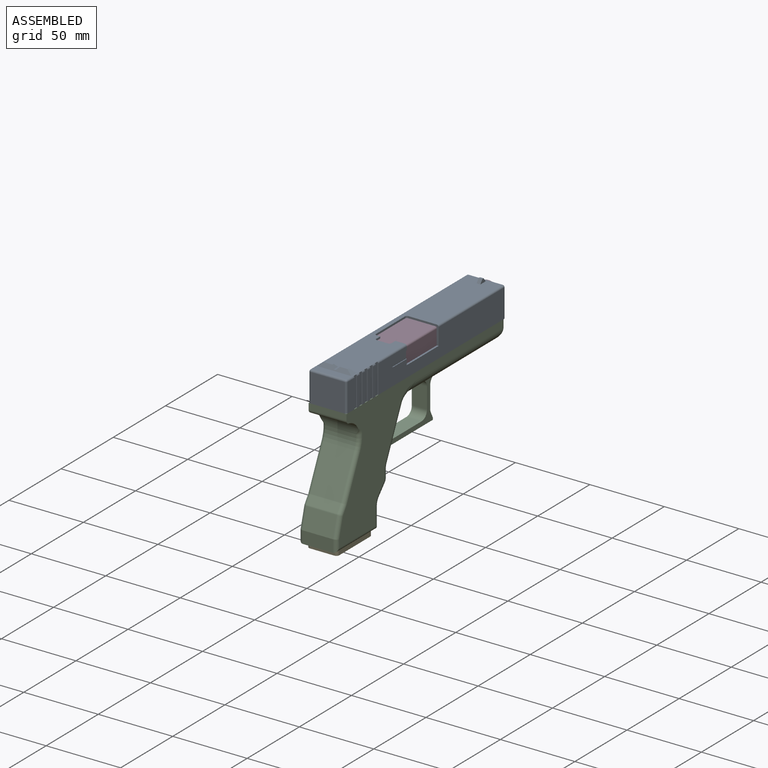
[diagram: assembled view]
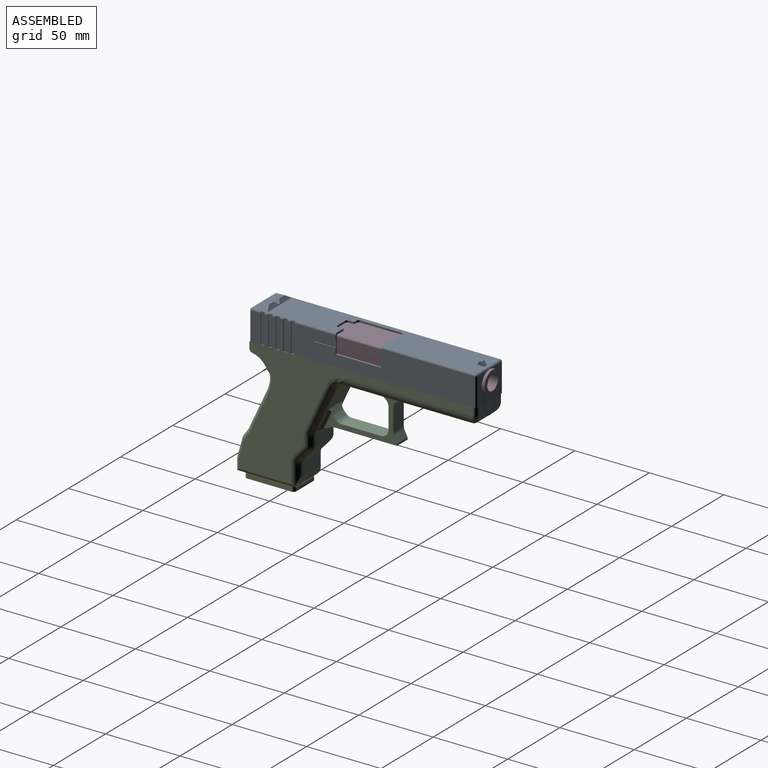
[diagram: assembled view, second angle]
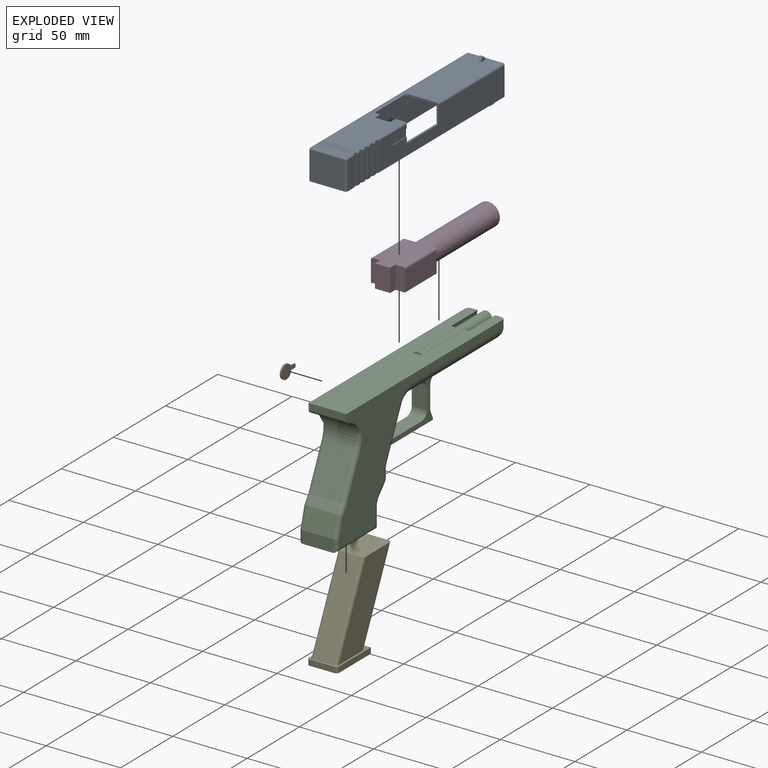
[diagram: exploded view]
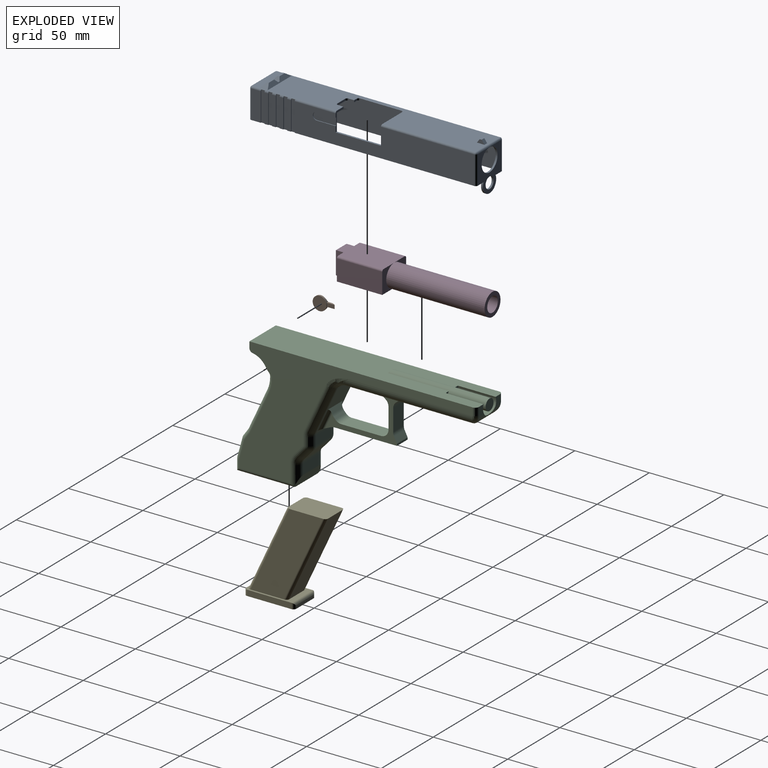
[diagram: exploded view, second angle]
ASSEMBLY  parts=5 mates=5
PART A: 102 faces, bbox 25.4x152.4x31.8 mm
  f0: plane 5.08x1.27mm, normal (0,0,1), area 6.5mm2, adj f2,f3,f95,f96
  f1: plane 5.08x1.27mm, normal (0,0,1), area 6.5mm2, adj f2,f3,f93,f97
  f2: plane 22.86x2.54mm, normal (0,0.8,0.6), area 52.9mm2, adj f0,f1,f4,f93,f94,f95,f96,f97
  f3: plane 22.86x2.54mm, normal (0,-0.8,0.6), area 52.9mm2, adj f0,f1,f25,f93,f94,f95,f96,f97
  f4: plane 139.7x22.86mm, normal (0,0,1), area 2511.1mm2, adj f2,f6,f7,f21,f34,f35,f36,f37
  f5: plane 2.54x1.27mm, normal (0,0,1), area 3.2mm2, adj f6,f7,f91,f92
  f6: plane 2.54x2.54mm, normal (0,0.8,0.6), area 8.1mm2, adj f4,f5,f91,f92
  f7: plane 2.54x2.54mm, normal (0,-0.8,0.6), area 8.1mm2, adj f4,f5,f91,f92
  f8: plane 152.4x25.4mm, normal (0,0,-1), area 417.4mm2, adj f9,f11,f12,f13,f14,f15,f16,f17
  f9: plane 3.22x2.54mm, normal (-1,0,0), area 7mm2, adj f8,f59,f60,f61
  f10: plane 7.03x2.54mm, normal (-1,0,0), area 16.7mm2, adj f63,f64,f65,f85
  f11: plane 19.05x7.62mm, normal (-1,0,0), area 128mm2, adj f8,f66,f67,f68,f71,f76,f85
  f12: plane 120.65x19.05mm, normal (-1,0,0), area 2298.4mm2, adj f8,f73,f82,f85
  f13: plane 19.05x2.54mm, normal (-1,0,0), area 48.4mm2, adj f8,f70,f74,f85
  f14: plane 19.05x6.35mm, normal (-1,0,0), area 121mm2, adj f8,f62,f85,f89
  f15: plane 19.05x2.54mm, normal (1,0,0), area 48.4mm2, adj f8,f54,f56,f78
  f16: plane 19.05x2.54mm, normal (1,0,0), area 48.4mm2, adj f8,f51,f53,f78
  f17: plane 19.05x2.54mm, normal (1,0,0), area 48.4mm2, adj f8,f48,f50,f78
  f18: plane 19.05x2.54mm, normal (1,0,0), area 48.4mm2, adj f8,f45,f47,f78
  f19: plane 120.65x19.05mm, normal (1,0,0), area 1875.3mm2, adj f8,f21,f33,f34,f40,f41,f42,f44
  f20: plane 19.05x6.35mm, normal (1,0,0), area 121mm2, adj f8,f57,f78,f86
  f21: plane 12.7x7.62mm, normal (0,1,0), area 21.3mm2, adj f4,f19,f22,f23,f33,f39,f40,f41
  f22: plane 149.86x22.86mm, normal (0,0,-1), area 2756.2mm2, adj f21,f23,f27,f28,f29,f34,f35,f36
  f23: plane 149.86x19.05mm, normal (-1,0,0), area 2506.4mm2, adj f8,f21,f22,f27,f28,f33,f34
  f24: plane 27.94x22.86mm, normal (0,1,0), area 302.2mm2, adj f8,f30,f31,f32,f79,f82,f83
  f25: plane 22.86x5.08mm, normal (0,0,1), area 116.1mm2, adj f3,f78,f85,f88
  f26: plane 22.86x19.05mm, normal (0,-1,0), area 435.5mm2, adj f8,f86,f88,f89
  f27: plane 27.94x22.86mm, normal (0,-1,0), area 302.2mm2, adj f8,f22,f23,f29,f30,f31,f32
  f28: plane 22.86x19.05mm, normal (0,1,0), area 435.5mm2, adj f8,f22,f23,f29
  f29: plane 149.86x19.05mm, normal (1,0,0), area 2854.8mm2, adj f8,f22,f27,f28
  f30: cylinder r=6.35mm len=12.7mm, axis (0,1,0), area 32mm2, adj f8,f24,f27
  f31: cylinder r=3.81mm len=7.62mm, axis (0,1,0), area 30.4mm2, adj f24,f27
  f32: cylinder r=7.62mm len=15.24mm, axis (0,1,0), area 60.8mm2, adj f24,f27
  f33: plane 30.48x1.27mm, normal (0,0,1), area 38.7mm2, adj f19,f21,f23,f34
  f34: plane 20.32x12.7mm, normal (0,-1,0), area 40mm2, adj f4,f19,f22,f23,f33,f80,f98
  f35: plane 27.94x1.27mm, normal (1,0,0), area 35.5mm2, adj f4,f22,f98,f99
  f36: plane 2.54x1.27mm, normal (0,1,0), area 3.2mm2, adj f4,f22,f37,f99
  f37: plane 3.81x1.27mm, normal (1,0,0), area 4.8mm2, adj f4,f22,f36,f100
  f38: plane 7.62x1.27mm, normal (0,1,0), area 9.7mm2, adj f4,f22,f100,f101
  f39: plane 3.81x1.27mm, normal (-1,0,0), area 4.8mm2, adj f4,f21,f22,f101
  f40: plane 12.7x0.51mm, normal (0,0,1), area 6.5mm2, adj f19,f21,f42,f43
  f41: plane 12.7x0.51mm, normal (0,0,-1), area 6.5mm2, adj f19,f21,f42,f43
  f42: cylinder r=2.54mm len=5.08mm, axis (1,0,0), area 4.1mm2, adj f19,f40,f41,f43
  f43: plane 15.24x5.08mm, normal (1,0,0), area 74.7mm2, adj f21,f40,f41,f42
  f44: plane 20.07x0.51mm, normal (0,-1,0), area 10mm2, adj f8,f19,f46,f78
  f45: plane 20.07x0.51mm, normal (0,1,0), area 10mm2, adj f8,f18,f46,f78
  f46: plane 20.07x2.54mm, normal (1,0,0), area 51mm2, adj f8,f44,f45,f78
  f47: plane 20.07x0.51mm, normal (0,-1,0), area 10mm2, adj f8,f18,f49,f78
  f48: plane 20.07x0.51mm, normal (0,1,0), area 10mm2, adj f8,f17,f49,f78
  f49: plane 20.07x2.54mm, normal (1,0,0), area 51mm2, adj f8,f47,f48,f78
  f50: plane 20.07x0.51mm, normal (0,-1,0), area 10mm2, adj f8,f17,f52,f78
  f51: plane 20.07x0.51mm, normal (0,1,0), area 10mm2, adj f8,f16,f52,f78
  f52: plane 20.07x2.54mm, normal (1,0,0), area 51mm2, adj f8,f50,f51,f78
  f53: plane 20.07x0.51mm, normal (0,-1,0), area 10mm2, adj f8,f16,f55,f78
  f54: plane 20.07x0.51mm, normal (0,1,0), area 10mm2, adj f8,f15,f55,f78
  f55: plane 20.07x2.54mm, normal (1,0,0), area 51mm2, adj f8,f53,f54,f78
  f56: plane 20.07x0.51mm, normal (0,-1,0), area 10mm2, adj f8,f15,f58,f78
  f57: plane 20.07x0.51mm, normal (0,1,0), area 10mm2, adj f8,f20,f58,f78
  f58: plane 20.07x2.54mm, normal (1,0,0), area 51mm2, adj f8,f56,f57,f78
  f59: plane 2.54x0.51mm, normal (0,1,0), area 1.3mm2, adj f8,f9,f60,f69
  f60: cylinder r=5.08mm len=2.54mm, axis (-1,0,0), area 1.4mm2, adj f9,f59,f61,f69
  f61: plane 3.22x0.51mm, normal (0,-1,0), area 1.6mm2, adj f8,f9,f60,f69
  f62: plane 20.07x0.51mm, normal (0,1,0), area 10mm2, adj f8,f14,f69,f85
  f63: plane 8.05x0.51mm, normal (0,-1,0), area 3.9mm2, adj f10,f64,f69,f85
  f64: cylinder r=5.08mm len=2.54mm, axis (-1,0,0), area 1.4mm2, adj f10,f63,f65,f69
  f65: plane 7.37x0.51mm, normal (0,1,0), area 3.6mm2, adj f10,f64,f69,f85
  f66: plane 8.05x0.51mm, normal (0,-1,0), area 3.9mm2, adj f11,f67,f69,f85
  f67: cylinder r=5.08mm len=8.8mm, axis (-1,0,0), area 5.4mm2, adj f11,f66,f68,f69
  f68: plane 3.22x0.51mm, normal (0,-1,0), area 1.6mm2, adj f8,f11,f67,f69
  f69: plane 20.07x10.16mm, normal (-1,0,0), area 142.5mm2, adj f8,f59,f60,f61,f62,f63,f64,f65
  f70: plane 20.07x0.51mm, normal (0,-1,0), area 10mm2, adj f8,f13,f72,f85
  f71: plane 20.07x0.51mm, normal (0,1,0), area 10mm2, adj f8,f11,f72,f85
  f72: plane 20.07x2.54mm, normal (-1,0,0), area 51mm2, adj f8,f70,f71,f85
  f73: plane 20.07x0.51mm, normal (0,-1,0), area 10mm2, adj f8,f12,f75,f85
  f74: plane 20.07x0.51mm, normal (0,1,0), area 10mm2, adj f8,f13,f75,f85
  f75: plane 20.07x2.54mm, normal (-1,0,0), area 51mm2, adj f8,f73,f74,f85
  f76: cylinder r=0.64mm len=1.27mm, axis (-1,0,0), area 2mm2, adj f11,f77
  f77: plane 1.27x1.27mm, normal (-1,0,0), area 1.3mm2, adj f76
  f78: cylinder r=1.27mm len=56.6mm, axis (0,1,0), area 98mm2, adj f4,f15,f16,f17,f18,f19,f20,f21
  f79: cylinder r=1.27mm len=19.05mm, axis (0,0,-1), area 38mm2, adj f8,f19,f24,f81
  f80: cylinder r=1.27mm len=62.78mm, axis (0,1,0), area 125.2mm2, adj f4,f19,f34,f81
  f81: sphere r=1.27mm, area 2.5mm2, adj f79,f80,f83
  f82: cylinder r=1.27mm len=19.05mm, axis (0,0,1), area 38mm2, adj f8,f12,f24,f84
  f83: cylinder r=1.27mm len=22.86mm, axis (-1,0,0), area 45.6mm2, adj f4,f24,f81,f84
  f84: sphere r=1.27mm, area 2.5mm2, adj f82,f83,f85
  f85: cylinder r=1.27mm len=149.86mm, axis (0,-1,0), area 287mm2, adj f4,f10,f11,f12,f13,f14,f25,f62
  f86: cylinder r=1.27mm len=19.05mm, axis (0,0,1), area 38mm2, adj f8,f20,f26,f87
  f87: sphere r=1.27mm, area 2.5mm2, adj f78,f86,f88
  f88: cylinder r=1.27mm len=22.86mm, axis (1,0,0), area 45.6mm2, adj f25,f26,f87,f90
  f89: cylinder r=1.27mm len=19.05mm, axis (0,0,-1), area 38mm2, adj f8,f14,f26,f90
  f90: sphere r=1.27mm, area 2.5mm2, adj f85,f88,f89
  f91: plane 5.08x2.54mm, normal (-1,0,0), area 8.1mm2, adj f4,f5,f6,f7
  f92: plane 5.08x2.54mm, normal (1,0,0), area 8.1mm2, adj f4,f5,f6,f7
  f93: plane 4.13x1.91mm, normal (0.71,0,0.71), area 7.3mm2, adj f1,f2,f3,f94
  f94: plane 4.13x1.27mm, normal (0,0,1), area 5.2mm2, adj f2,f3,f93,f95
  f95: plane 4.13x1.91mm, normal (-0.71,0,0.71), area 7.3mm2, adj f0,f2,f3,f94
  f96: plane 5.08x3.81mm, normal (0.55,0,0.83), area 14.5mm2, adj f0,f2,f3,f78
  f97: plane 5.08x3.81mm, normal (-0.55,0,0.83), area 14.5mm2, adj f1,f2,f3,f85
  f98: cylinder r=1.27mm len=1.27mm, axis (0,0,-1), area 2.5mm2, adj f4,f22,f34,f35
  f99: cylinder r=1.27mm len=1.27mm, axis (0,0,1), area 2.5mm2, adj f4,f22,f35,f36
  f100: cylinder r=1.27mm len=1.27mm, axis (0,0,-1), area 2.5mm2, adj f4,f22,f37,f38
  f101: cylinder r=1.27mm len=1.27mm, axis (0,0,1), area 2.5mm2, adj f4,f22,f38,f39
PART B: 11 faces, bbox 1.9x14.3x9.3 mm
  f0: cone r=4.66mm half-angle=3deg, axis (1,0,0), area 36.4mm2, adj f1,f2,f3,f4,f6,f7,f9
  f1: plane 9.18x7.46mm, normal (-1,0,0), area 33.2mm2, adj f0,f7,f8,f9
  f2: plane 9.31x9.31mm, normal (1,0,0), area 68.1mm2, adj f0
  f3: plane 5.25x1.27mm, normal (0,0,-1), area 5.3mm2, adj f0,f5,f6,f10
  f4: plane 5.34x1.27mm, normal (0,0,1), area 5.4mm2, adj f0,f5,f6,f10
  f5: plane 4.26x2.54mm, normal (-1,0,0), area 10.8mm2, adj f3,f4,f7,f8,f9,f10
  f6: plane 5.27x2.54mm, normal (1,0,0), area 13mm2, adj f0,f3,f4,f10
  f7: cylinder r=5.08mm len=4.74mm, axis (0,1,0), area 7.2mm2, adj f0,f1,f5,f8
  f8: cylinder r=5.08mm len=7.46mm, axis (0,0,-1), area 12.7mm2, adj f1,f5,f7,f9
  f9: cylinder r=5.08mm len=4.83mm, axis (0,1,0), area 7.7mm2, adj f0,f1,f5,f8
  f10: cylinder r=5.08mm len=3.36mm, axis (0,0,-1), area 9.3mm2, adj f3,f4,f5,f6
PART C: 154 faces, bbox 41.3x167.5x88.3 mm
  f0: plane 20.32x6.64mm, normal (0,1,0), area 134.9mm2, adj f1,f2,f87,f153
  f1: plane 159.55x81.6mm, normal (-1,0,0), area 2965.3mm2, adj f0,f34,f85,f87,f88,f93,f94,f95
  f2: plane 156.69x78.74mm, normal (1,0,0), area 2965.3mm2, adj f0,f33,f86,f87,f88,f93,f94,f95
  f3: plane 15.24x0.88mm, normal (0,0.91,-0.42), area 14.9mm2, adj f39,f42,f43,f132
  f4: plane 22.61x10.16mm, normal (0,0,-1), area 229.7mm2, adj f25,f26,f36,f138
  f5: plane 20.32x2.8mm, normal (0,0,-1), area 56.9mm2, adj f11,f33,f34,f88
  f6: plane 5.08x4.34mm, normal (0,1,0), area 20.2mm2, adj f17,f27,f28,f76
  f7: plane 5.08x4.34mm, normal (0,1,0), area 20.2mm2, adj f17,f27,f30,f76
  f8: plane 20.32x13.23mm, normal (0,-0.96,0.27), area 279mm2, adj f9,f59,f60,f61
  f9: plane 20.32x8.26mm, normal (0,-1,0), area 167.7mm2, adj f8,f10,f57,f58
  f10: plane 20.32x7.62mm, normal (0,0,-1), area 154.8mm2, adj f9,f33,f34,f152
  f11: plane 27.09x9.75mm, normal (0,0.91,-0.42), area 169mm2, adj f5,f12,f33,f34,f50,f56
  f12: plane 15.24x6.94mm, normal (0,1,0), area 105.7mm2, adj f11,f50,f54,f56
  f13: plane 15.24x6.63mm, normal (0,0.74,-0.67), area 136mm2, adj f48,f49,f53,f54
  f14: plane 15.24x5.81mm, normal (0,1,0), area 88.6mm2, adj f43,f44,f47,f48
  f15: plane 15.24x15.1mm, normal (0,0.91,-0.42), area 250.1mm2, adj f35,f36,f38,f39,f42,f131
  f16: plane 48.45x10.16mm, normal (0,0,-1), area 492.2mm2, adj f25,f26,f27,f137
  f17: plane 152.4x25.4mm, normal (0,0,1), area 3341.7mm2, adj f6,f7,f18,f23,f24,f28,f30,f76
  f18: plane 25.4x4.01mm, normal (0,-1,0), area 101.9mm2, adj f17,f23,f24,f32
  f19: cylinder r=12.7mm len=25.4mm, axis (-1,0,0), area 407mm2, adj f23,f24,f32,f73,f74,f75
  f20: cylinder r=19.05mm len=20.32mm, axis (-1,0,0), area 184.3mm2, adj f21,f71,f72,f75
  f21: plane 27.1x20.32mm, normal (0,-0.91,0.42), area 607.7mm2, adj f20,f65,f69,f70
  f22: plane 20.32x4.86mm, normal (0,-0.82,0.57), area 120.5mm2, adj f60,f64,f65,f66
  f23: plane 162.41x84.46mm, normal (1,0,0), area 3311.4mm2, adj f17,f18,f19,f25,f28,f32,f34,f40
  f24: plane 156.69x78.74mm, normal (-1,0,0), area 3311.4mm2, adj f17,f18,f19,f26,f30,f32,f33,f37
  f25: cylinder r=7.62mm len=89.47mm, axis (0,-1,0), area 1005.1mm2, adj f4,f16,f23,f29,f38,f141
  f26: cylinder r=7.62mm len=89.47mm, axis (0,1,0), area 1005.1mm2, adj f4,f16,f24,f31,f35,f142
  f27: cylinder r=7.62mm len=20.32mm, axis (-1,0,0), area 149.4mm2, adj f6,f7,f16,f29,f31,f76
  f28: cylinder r=2.54mm len=5.08mm, axis (0,0,-1), area 20.3mm2, adj f6,f17,f23,f29
  f29: bspline ~8.94x7.62mm, area 21mm2, adj f25,f27,f28
  f30: cylinder r=2.54mm len=5.08mm, axis (0,0,1), area 20.3mm2, adj f7,f17,f24,f31
  f31: bspline ~7.95x7.62mm, area 21mm2, adj f26,f27,f30
  f32: cylinder r=2.54mm len=25.4mm, axis (-1,0,0), area 90.8mm2, adj f18,f19,f23,f24
  f33: cylinder r=2.54mm len=39.14mm, axis (0,1,0), area 148.7mm2, adj f2,f5,f10,f11,f24,f50,f58
  f34: cylinder r=2.54mm len=39.14mm, axis (0,-1,0), area 148.7mm2, adj f1,f5,f10,f11,f23,f56,f57
  f35: bspline ~12.7x12.7mm, area 29.1mm2, adj f15,f26,f36,f37
  f36: cylinder r=5.08mm len=10.16mm, axis (-1,0,0), area 58.6mm2, adj f4,f15,f35,f38
  f37: bspline ~15.26x10.6mm, area 46.6mm2, adj f24,f35,f39
  f38: bspline ~12.7x12.7mm, area 29.1mm2, adj f15,f25,f36,f40
  f39: cylinder r=5.08mm len=32.74mm, axis (0,0.42,0.91), area 269.4mm2, adj f3,f15,f24,f37,f41,f150
  f40: bspline ~15.26x10.6mm, area 41.7mm2, adj f23,f38,f42
  f41: torus R=10.16mm, axis (1,0,0), area 24.1mm2, adj f24,f39,f43,f44
  f42: cylinder r=5.08mm len=32.74mm, axis (0,-0.42,-0.91), area 269.4mm2, adj f3,f15,f23,f40,f45,f151
  f43: cylinder r=5.08mm len=15.24mm, axis (1,0,0), area 33.8mm2, adj f3,f14,f41,f45
  f44: cylinder r=5.08mm len=5.81mm, axis (0,0,1), area 46.4mm2, adj f14,f24,f41,f46
  f45: torus R=10.16mm, axis (1,0,0), area 24.1mm2, adj f23,f42,f43,f47
  f46: sphere r=5.08mm, area 14.2mm2, adj f44,f48,f49
  f47: cylinder r=5.08mm len=5.81mm, axis (0,0,-1), area 46.4mm2, adj f14,f23,f45,f51
  f48: cylinder r=5.08mm len=15.24mm, axis (-1,0,0), area 56.8mm2, adj f13,f14,f46,f51
  f49: cylinder r=5.08mm len=10.03mm, axis (0,0.67,0.74), area 71.2mm2, adj f13,f24,f46,f52
  f50: cylinder r=5.08mm len=12.95mm, axis (0,0,1), area 84.6mm2, adj f11,f12,f24,f33,f52
  f51: sphere r=5.08mm, area 14.2mm2, adj f47,f48,f53
  f52: torus R=10.16mm, axis (1,0,0), area 40.5mm2, adj f24,f49,f50,f54
  f53: cylinder r=5.08mm len=10.03mm, axis (0,-0.67,-0.74), area 71.2mm2, adj f13,f23,f51,f55
  f54: cylinder r=5.08mm len=15.24mm, axis (1,0,0), area 56.8mm2, adj f12,f13,f52,f55
  f55: torus R=10.16mm, axis (1,0,0), area 40.5mm2, adj f23,f53,f54,f56
  f56: cylinder r=5.08mm len=12.95mm, axis (0,0,-1), area 84.6mm2, adj f11,f12,f23,f34,f55
  f57: cylinder r=2.54mm len=8.26mm, axis (0,0,1), area 27.2mm2, adj f9,f23,f34,f59
  f58: cylinder r=2.54mm len=8.26mm, axis (0,0,-1), area 27.2mm2, adj f9,f24,f33,f61
  f59: cylinder r=2.54mm len=13.91mm, axis (0,0.27,0.96), area 54.1mm2, adj f8,f23,f57,f62
  f60: cylinder r=2.54mm len=20.32mm, axis (-1,0,0), area 17.6mm2, adj f8,f22,f62,f63
  f61: cylinder r=2.54mm len=13.91mm, axis (0,-0.27,-0.96), area 54.1mm2, adj f8,f24,f58,f63
  f62: sphere r=2.54mm, area 1.6mm2, adj f59,f60,f64
  f63: sphere r=2.54mm, area 1.6mm2, adj f60,f61,f66
  f64: cylinder r=2.54mm len=6.32mm, axis (0,0.57,0.82), area 23.7mm2, adj f22,f23,f62,f67
  f65: cylinder r=2.54mm len=20.32mm, axis (-1,0,0), area 9.1mm2, adj f21,f22,f67,f68
  f66: cylinder r=2.54mm len=6.32mm, axis (0,-0.57,-0.82), area 23.7mm2, adj f22,f24,f63,f68
  f67: torus R=5.08mm, axis (1,0,0), area 2.4mm2, adj f23,f64,f65,f69
  f68: torus R=5.08mm, axis (1,0,0), area 2.4mm2, adj f24,f65,f66,f70
  f69: cylinder r=2.54mm len=28.18mm, axis (0,0.42,0.91), area 119.3mm2, adj f21,f23,f67,f71
  f70: cylinder r=2.54mm len=28.18mm, axis (0,-0.42,-0.91), area 119.3mm2, adj f21,f24,f68,f72
  f71: torus R=21.59mm, axis (1,0,0), area 37.9mm2, adj f20,f23,f69,f73
  f72: torus R=21.59mm, axis (1,0,0), area 37.9mm2, adj f20,f24,f70,f74
  f73: torus R=5.08mm, axis (1,0,0), area 12.1mm2, adj f19,f23,f71,f75
  f74: torus R=5.08mm, axis (1,0,0), area 12.1mm2, adj f19,f24,f72,f75
  f75: cylinder r=2.54mm len=20.32mm, axis (1,0,0), area 3.5mm2, adj f19,f20,f73,f74
  f76: cylinder r=6.35mm len=25.4mm, axis (0,1,0), area 639.5mm2, adj f6,f7,f17,f27,f77
  f77: plane 12.7x8.89mm, normal (0,1,0), area 54.1mm2, adj f17,f76,f78
  f78: cylinder r=3.81mm len=66.04mm, axis (0,1,0), area 868.5mm2, adj f17,f77,f79,f80
  f79: plane 5.68x1.27mm, normal (0,-1,0), area 5mm2, adj f17,f78
  f80: plane 7.62x7.62mm, normal (0,1,0), area 45.6mm2, adj f78
  f81: cylinder r=5.08mm len=5.58mm, axis (-1,0,0), area 14.9mm2, adj f83,f86,f100,f126
  f82: plane 17.78x7.62mm, normal (0,-1,0), area 113.7mm2, adj f83,f84,f93,f126,f127
  f83: plane 84.39x10.16mm, normal (0,0,1), area 671.3mm2, adj f81,f82,f84,f99,f100,f101,f103,f126
  f84: cylinder r=8.89mm len=25.4mm, axis (0,1,0), area 224mm2, adj f82,f83,f85,f93,f101
  f85: plane 2.54x1.64mm, normal (0,-1,0), area 3.5mm2, adj f1,f84,f93,f101
  f86: plane 2.54x1.64mm, normal (0,-1,0), area 3.5mm2, adj f2,f81,f93,f126
  f87: plane 20.32x12.9mm, normal (0,0.96,-0.27), area 272mm2, adj f0,f1,f2,f98
  f88: plane 22.61x9.84mm, normal (0,-0.91,0.42), area 162.7mm2, adj f1,f2,f5,f89,f117,f123
  f89: plane 15.24x6.38mm, normal (0,-1,0), area 97.2mm2, adj f88,f117,f121,f123
  f90: plane 15.24x6.63mm, normal (0,-0.74,0.67), area 136mm2, adj f115,f116,f120,f121
  f91: plane 15.24x5.81mm, normal (0,-1,0), area 88.6mm2, adj f110,f111,f114,f115
  f92: plane 30.59x15.24mm, normal (0,-0.91,0.42), area 510.6mm2, adj f102,f103,f105,f106,f109,f110
  f93: plane 147.32x20.32mm, normal (0,0,-1), area 2451.6mm2, adj f1,f2,f82,f84,f85,f86,f94,f126
  f94: plane 20.32x1.47mm, normal (0,1,0), area 29.9mm2, adj f1,f2,f93,f95
  f95: cylinder r=15.24mm len=20.32mm, axis (-1,0,0), area 402.8mm2, adj f1,f2,f94,f125
  f96: cylinder r=21.59mm len=20.32mm, axis (-1,0,0), area 208.8mm2, adj f1,f2,f97,f125
  f97: plane 27.1x20.32mm, normal (0,0.91,-0.42), area 607.7mm2, adj f1,f2,f96,f124
  f98: plane 20.32x4.86mm, normal (0,0.82,-0.57), area 120.5mm2, adj f1,f2,f87,f124
  f99: cylinder r=5.08mm len=89.47mm, axis (0,-1,0), area 670.1mm2, adj f1,f83,f101,f105
  f100: cylinder r=5.08mm len=89.47mm, axis (0,1,0), area 670.1mm2, adj f2,f81,f83,f102
  f101: cylinder r=5.08mm len=5.58mm, axis (-1,0,0), area 14.9mm2, adj f83,f84,f85,f99
  f102: bspline ~12.83x12.7mm, area 35.2mm2, adj f92,f100,f103,f104
  f103: cylinder r=7.62mm len=10.16mm, axis (-1,0,0), area 87.8mm2, adj f83,f92,f102,f105
  f104: bspline ~15.26x9.64mm, area 26.1mm2, adj f2,f102,f106
  f105: bspline ~12.83x12.7mm, area 35.2mm2, adj f92,f99,f103,f107
  f106: cylinder r=2.54mm len=31.67mm, axis (0,0.42,0.91), area 134.7mm2, adj f2,f92,f104,f108
  f107: bspline ~15.26x9.64mm, area 24.9mm2, adj f1,f105,f109
  f108: torus R=10.16mm, axis (1,0,0), area 14.9mm2, adj f2,f106,f110,f111
  f109: cylinder r=2.54mm len=31.67mm, axis (0,-0.42,-0.91), area 134.7mm2, adj f1,f92,f107,f112
  f110: cylinder r=7.62mm len=15.24mm, axis (1,0,0), area 50.7mm2, adj f91,f92,f108,f112
  f111: cylinder r=2.54mm len=5.81mm, axis (0,0,1), area 23.2mm2, adj f2,f91,f108,f113
  f112: torus R=10.16mm, axis (1,0,0), area 14.9mm2, adj f1,f109,f110,f114
  f113: sphere r=2.54mm, area 3.6mm2, adj f111,f115,f116
  f114: cylinder r=2.54mm len=5.81mm, axis (0,0,-1), area 23.2mm2, adj f1,f91,f112,f118
  f115: cylinder r=2.54mm len=15.24mm, axis (-1,0,0), area 28.4mm2, adj f90,f91,f113,f118
  f116: cylinder r=2.54mm len=8.33mm, axis (0,0.67,0.74), area 35.6mm2, adj f2,f90,f113,f119
  f117: cylinder r=2.54mm len=11.82mm, axis (0,0,1), area 36.3mm2, adj f2,f88,f89,f119
  f118: sphere r=2.54mm, area 3.6mm2, adj f114,f115,f120
  f119: torus R=10.16mm, axis (1,0,0), area 25mm2, adj f2,f116,f117,f121
  f120: cylinder r=2.54mm len=8.33mm, axis (0,-0.67,-0.74), area 35.6mm2, adj f1,f90,f118,f122
  f121: cylinder r=7.62mm len=15.24mm, axis (1,0,0), area 85.2mm2, adj f89,f90,f119,f122
  f122: torus R=10.16mm, axis (1,0,0), area 25mm2, adj f1,f120,f121,f123
  f123: cylinder r=2.54mm len=11.82mm, axis (0,0,-1), area 36.3mm2, adj f1,f88,f89,f122
  f124: cylinder r=5.08mm len=20.32mm, axis (-1,0,0), area 18.1mm2, adj f1,f2,f97,f98
  f125: cylinder r=5.08mm len=20.32mm, axis (1,0,0), area 7mm2, adj f1,f2,f95,f96
  f126: cylinder r=8.89mm len=25.4mm, axis (0,1,0), area 224mm2, adj f81,f82,f83,f86,f93
  f127: cylinder r=1.27mm len=60.96mm, axis (0,1,0), area 344.6mm2, adj f82,f93,f128,f129
  f128: plane 2.54x1.27mm, normal (0,1,0), area 2.5mm2, adj f93,f127
  f129: plane 2.54x2.54mm, normal (0,-1,0), area 5.1mm2, adj f127
  f130: plane 10.16x1.55mm, normal (0,0.74,0.68), area 21.4mm2, adj f141,f142,f143,f149
  f131: plane 15.24x3.04mm, normal (0,0.91,0.4), area 37.5mm2, adj f15,f143,f150,f151
  f132: plane 15.24x7.58mm, normal (0,0.41,-0.91), area 88.5mm2, adj f3,f141,f142,f144,f150,f151
  f133: plane 42.1x10.16mm, normal (0,0,-1), area 427.7mm2, adj f134,f141,f142,f144
  f134: plane 10.16x1.27mm, normal (0,1,0), area 12.9mm2, adj f133,f135,f141,f142
  f135: plane 10.16x4.01mm, normal (0,0.89,0.45), area 45.5mm2, adj f134,f141,f142,f145
  f136: plane 14.68x10.16mm, normal (0,1,0), area 149.1mm2, adj f141,f142,f145,f146
  f137: plane 10.16x3.05mm, normal (0,0.6,-0.8), area 38.7mm2, adj f16,f141,f142,f146
  f138: plane 10.16x3.05mm, normal (0,-0.6,-0.8), area 38.7mm2, adj f4,f141,f142,f147
  f139: plane 13.97x10.16mm, normal (0,-1,0), area 141.9mm2, adj f141,f142,f147,f148
  f140: plane 26.73x10.16mm, normal (0,0,1), area 271.5mm2, adj f141,f142,f148,f149
  f141: plane 50.75x30.81mm, normal (1,0,0), area 274.6mm2, adj f25,f130,f132,f133,f134,f135,f136,f137
  f142: plane 50.75x30.81mm, normal (-1,0,0), area 274.6mm2, adj f26,f130,f132,f133,f134,f135,f136,f137
  f143: cylinder r=5.08mm len=10.16mm, axis (-1,0,0), area 16.9mm2, adj f130,f131,f141,f142,f150,f151
  f144: cylinder r=5.08mm len=10.16mm, axis (-1,0,0), area 21.6mm2, adj f132,f133,f141,f142
  f145: cylinder r=5.08mm len=10.16mm, axis (1,0,0), area 23.9mm2, adj f135,f136,f141,f142
  f146: cylinder r=5.08mm len=10.16mm, axis (-1,0,0), area 47.9mm2, adj f136,f137,f141,f142
  f147: cylinder r=5.08mm len=10.16mm, axis (-1,0,0), area 47.9mm2, adj f138,f139,f141,f142
  f148: cylinder r=5.08mm len=10.16mm, axis (-1,0,0), area 81.1mm2, adj f139,f140,f141,f142
  f149: cylinder r=5.08mm len=10.16mm, axis (1,0,0), area 42.7mm2, adj f130,f140,f141,f142
  f150: cylinder r=2.54mm len=15.68mm, axis (0,-0.42,-0.91), area 56.8mm2, adj f39,f131,f132,f142,f143
  f151: cylinder r=2.54mm len=15.68mm, axis (0,0.42,0.91), area 56.8mm2, adj f42,f131,f132,f141,f143
  f152: plane 20.32x1.27mm, normal (0,1,0), area 25.8mm2, adj f1,f2,f10,f153
  f153: plane 20.32x5.08mm, normal (0,0,1), area 103.2mm2, adj f0,f1,f2,f152
PART D: 17 faces, bbox 22.9x101.6x15.2 mm
  f0: plane 15.24x11.43mm, normal (0,1,0), area 82.6mm2, adj f1,f3,f5,f11,f16
  f1: plane 35.56x20.32mm, normal (0,0,1), area 671mm2, adj f0,f2,f4,f7,f8,f9,f10,f15
  f2: plane 15.24x10.16mm, normal (0,-1,0), area 154.8mm2, adj f1,f3,f7,f9
  f3: plane 35.56x22.86mm, normal (0,0,-1), area 748.4mm2, adj f0,f2,f4,f5,f6,f7,f8,f9
  f4: plane 15.24x11.43mm, normal (0,1,0), area 82.6mm2, adj f1,f3,f6,f11,f15
  f5: plane 30.48x13.97mm, normal (1,0,0), area 425.8mm2, adj f0,f3,f8,f16
  f6: plane 30.48x13.97mm, normal (-1,0,0), area 425.8mm2, adj f3,f4,f10,f15
  f7: plane 15.24x5.08mm, normal (1,0,0), area 77.4mm2, adj f1,f2,f3,f8
  f8: plane 15.24x6.35mm, normal (0,-1,0), area 96.4mm2, adj f1,f3,f5,f7,f16
  f9: plane 15.24x5.08mm, normal (-1,0,0), area 77.4mm2, adj f1,f2,f3,f10
  f10: plane 15.24x6.35mm, normal (0,-1,0), area 96.4mm2, adj f1,f3,f6,f9,f15
  f11: cylinder r=7.62mm len=66.04mm, axis (0,-1,0), area 3161.9mm2, adj f0,f4,f12
  f12: plane 15.24x15.24mm, normal (0,1,0), area 101.3mm2, adj f11,f13
  f13: cylinder r=5.08mm len=63.5mm, axis (0,1,0), area 2026.8mm2, adj f12,f14
  f14: plane 10.16x10.16mm, normal (0,1,0), area 81.1mm2, adj f13
  f15: cylinder r=1.27mm len=30.48mm, axis (0,-1,0), area 60.8mm2, adj f1,f4,f6,f10
  f16: cylinder r=1.27mm len=30.48mm, axis (0,1,0), area 60.8mm2, adj f0,f1,f5,f8
PART E: 20 faces, bbox 20.3x54x60.5 mm
  f0: plane 26.71x17.78mm, normal (0,0,1), area 471.4mm2, adj f1,f2,f3,f4,f16,f17,f18,f19
  f1: plane 55.88x26.06mm, normal (0,-0.91,0.42), area 861.3mm2, adj f0,f10,f16,f18
  f2: plane 55.88x26.06mm, normal (0,0.91,-0.42), area 861.3mm2, adj f0,f10,f17,f19
  f3: plane 55.88x48.56mm, normal (1,0,0), area 1257.4mm2, adj f0,f10,f18,f19
  f4: plane 55.88x48.56mm, normal (-1,0,0), area 1257.4mm2, adj f0,f10,f16,f17
  f5: plane 29.8x3.81mm, normal (-1,0,0), area 113.5mm2, adj f9,f10,f13,f15
  f6: plane 16.51x1.91mm, normal (0,1,0), area 31.5mm2, adj f9,f11,f12,f13
  f7: plane 29.8x3.81mm, normal (1,0,0), area 113.5mm2, adj f9,f10,f11,f14
  f8: plane 16.51x3.81mm, normal (0,-1,0), area 62.9mm2, adj f9,f10,f14,f15
  f9: plane 33.61x20.32mm, normal (0,0,-1), area 679.8mm2, adj f5,f6,f7,f8,f11,f13,f14,f15
  f10: plane 31.7x20.32mm, normal (0,0,1), area 171.3mm2, adj f1,f2,f3,f4,f5,f7,f8,f12
  f11: cylinder r=1.91mm len=3.81mm, axis (0,0,-1), area 9.3mm2, adj f6,f7,f9,f12
  f12: cylinder r=1.91mm len=20.32mm, axis (1,0,0), area 56.7mm2, adj f6,f10,f11,f13
  f13: cylinder r=1.91mm len=3.81mm, axis (0,0,1), area 9.3mm2, adj f5,f6,f9,f12
  f14: cylinder r=1.91mm len=3.81mm, axis (0,0,1), area 11.4mm2, adj f7,f8,f9,f10
  f15: cylinder r=1.91mm len=3.81mm, axis (0,0,-1), area 11.4mm2, adj f5,f8,f9,f10
  f16: cylinder r=1.91mm len=57.49mm, axis (0,-0.42,-0.91), area 184.5mm2, adj f0,f1,f4,f10
  f17: cylinder r=1.91mm len=57.49mm, axis (0,0.42,0.91), area 184.5mm2, adj f0,f2,f4,f10
  f18: cylinder r=1.91mm len=57.49mm, axis (0,0.42,0.91), area 184.5mm2, adj f0,f1,f3,f10
  f19: cylinder r=1.91mm len=57.49mm, axis (0,-0.42,-0.91), area 184.5mm2, adj f0,f2,f3,f10
PLACE A t=(-50.19,-17.68,89.64)mm
PLACE B t=(-50.7,-17.68,89.64)mm
PLACE C t=(-37.49,-14.59,68.56)mm
PLACE D t=(-37.49,-38,81.26)mm
PLACE E t=(-37.49,-15.49,68.56)mm
MATE fastened B.f0 <-> A.f60  axis (1,0,0) through (-50.19,-78.09,82.53)mm
MATE fastened D.f1 <-> A.f22  axis (0,0,1) through (-42.57,-32.92,93.96)mm
MATE parallel B.f0 <-> A.f60  axis (1,0,0) through (-50.19,-78.09,82.53)mm
MATE fastened A.f8 <-> C.f17  axis (0,0,-1) through (-37.49,-90.79,74.91)mm
MATE fastened C.f5 <-> E.f10  axis (0,0,-1) through (-37.49,-64.28,-6.37)mm
